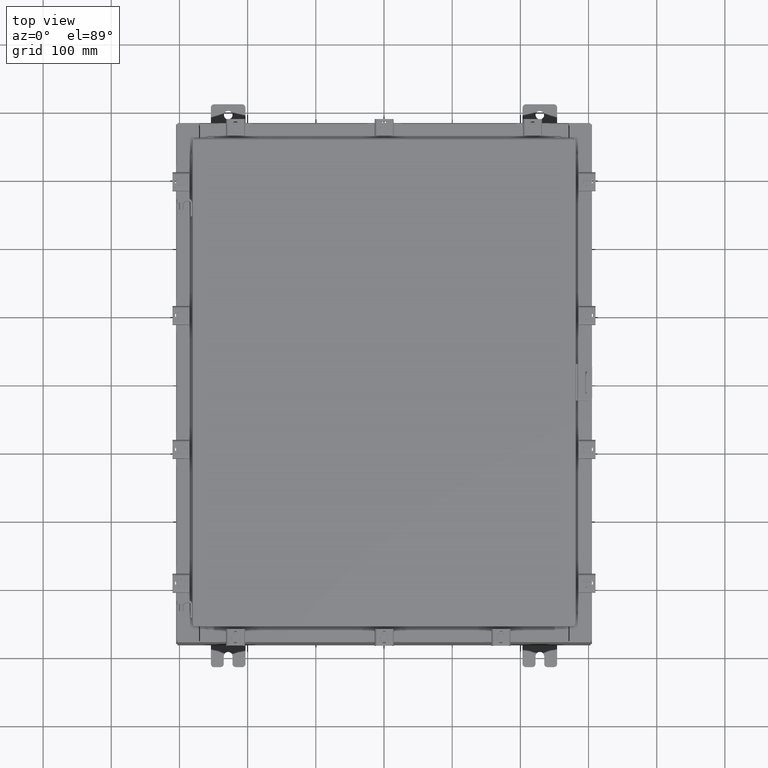
[diagram: clean part render]
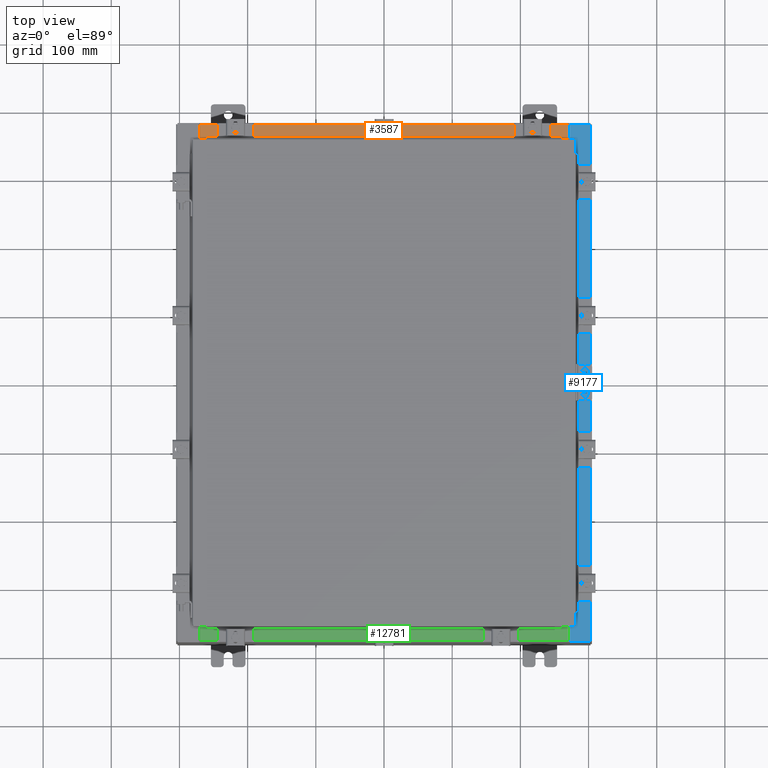
[diagram: same view with three faces highlighted in distinct colors, each labeled with its STEP entity id]
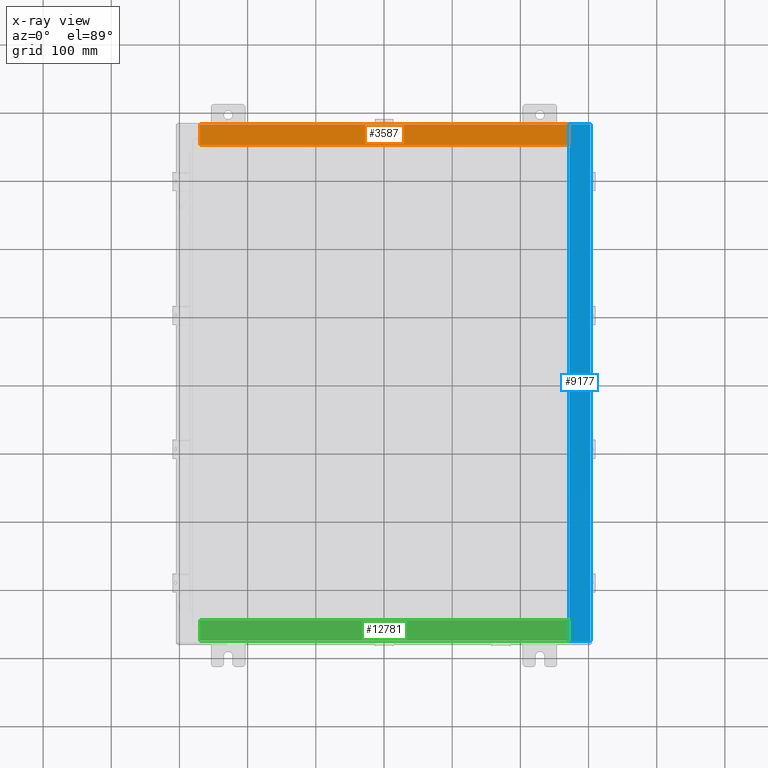
[diagram: x-ray of the same camera — body ghosted, the three highlighted faces saturated]
A machine part, top view with three faces highlighted in distinct colors.
The next image is the same camera in x-ray (body ghosted, the three faces saturated) — at least one of them is partly hidden behind the body in this view.
Their STEP definitions:

[orange] entity #3587 — the highlighted planar face has unit normal (0, 0, 1).
#71 = EDGE_CURVE ( 'NONE', #14273, #15420, #10271, .T. ) ;
#814 = ORIENTED_EDGE ( 'NONE', *, *, #11829, .F. ) ;
#822 = DIRECTION ( 'NONE',  ( 0.0000000000000000000, -1.000000000000000000, 3.566381192773190000E-015 ) ) ;
#1372 = CARTESIAN_POINT ( 'NONE',  ( -10.63720000000000200, -1.287299999999999200, 5.000000000000004400 ) ) ;
#2561 = ORIENTED_EDGE ( 'NONE', *, *, #6463, .F. ) ;
#3587 = ADVANCED_FACE ( 'NONE', ( #9654 ), #22399, .T. ) ;
#4755 = LINE ( 'NONE', #10333, #18420 ) ;
#5330 = ORIENTED_EDGE ( 'NONE', *, *, #20235, .F. ) ;
#6463 = EDGE_CURVE ( 'NONE', #18798, #15420, #11814, .T. ) ;
#8143 = VECTOR ( 'NONE', #19187, 39.37007874015748100 ) ;
#8326 = CARTESIAN_POINT ( 'NONE',  ( 0.0000000000000000000, 1.782631094477737600E-014, 5.000000000000000000 ) ) ;
#8558 = DIRECTION ( 'NONE',  ( -0.0000000000000000000, -1.000000000000000000, 3.566381192773190000E-015 ) ) ;
#8642 = CARTESIAN_POINT ( 'NONE',  ( -10.63720000000000200, -0.07469999999999973900, 5.000000000000000000 ) ) ;
#9253 = LINE ( 'NONE', #17388, #8143 ) ;
#9561 = CARTESIAN_POINT ( 'NONE',  ( 4.504626575497439200E-018, -0.08770000000000081900, 5.000000000000000000 ) ) ;
#9654 = FACE_OUTER_BOUND ( 'NONE', #19367, .T. ) ;
#9696 = VECTOR ( 'NONE', #9874, 39.37007874015748100 ) ;
#9874 = DIRECTION ( 'NONE',  ( -1.000000000000000000, -5.136404305013091600E-017, 1.831837571187793700E-031 ) ) ;
#10271 = LINE ( 'NONE', #9561, #9696 ) ;
#10333 = CARTESIAN_POINT ( 'NONE',  ( 10.63720000000000200, -1.300299999999999800, 5.000000000000004400 ) ) ;
#11674 = AXIS2_PLACEMENT_3D ( 'NONE', #8326, #14019, #822 ) ;
#11814 = LINE ( 'NONE', #8642, #16580 ) ;
#11829 = EDGE_CURVE ( 'NONE', #14273, #17532, #4755, .T. ) ;
#12236 = DIRECTION ( 'NONE',  ( -0.0000000000000000000, 1.000000000000000000, -3.566381192773190000E-015 ) ) ;
#12707 = ORIENTED_EDGE ( 'NONE', *, *, #71, .T. ) ;
#14019 = DIRECTION ( 'NONE',  ( 0.0000000000000000000, 3.566381192773190000E-015, 1.000000000000000000 ) ) ;
#14273 = VERTEX_POINT ( 'NONE', #20432 ) ;
#15420 = VERTEX_POINT ( 'NONE', #18469 ) ;
#15611 = CARTESIAN_POINT ( 'NONE',  ( 10.63720000000000200, -1.287299999999999900, 5.000000000000004400 ) ) ;
#16580 = VECTOR ( 'NONE', #12236, 39.37007874015748100 ) ;
#17388 = CARTESIAN_POINT ( 'NONE',  ( 10.63720000000000400, -1.287299999999999900, 5.000000000000003600 ) ) ;
#17532 = VERTEX_POINT ( 'NONE', #15611 ) ;
#18420 = VECTOR ( 'NONE', #8558, 39.37007874015748100 ) ;
#18469 = CARTESIAN_POINT ( 'NONE',  ( -10.63720000000000200, -0.08770000000000081900, 5.000000000000000000 ) ) ;
#18798 = VERTEX_POINT ( 'NONE', #1372 ) ;
#19187 = DIRECTION ( 'NONE',  ( -1.000000000000000000, 0.0000000000000000000, 0.0000000000000000000 ) ) ;
#19367 = EDGE_LOOP ( 'NONE', ( #2561, #5330, #814, #12707 ) ) ;
#20235 = EDGE_CURVE ( 'NONE', #17532, #18798, #9253, .T. ) ;
#20432 = CARTESIAN_POINT ( 'NONE',  ( 10.63720000000000400, -0.08770000000000047200, 5.000000000000000000 ) ) ;
#22399 = PLANE ( 'NONE',  #11674 ) ;

[blue] entity #9177 — the highlighted planar face has unit normal (-0, 0, -1).
#142 = CARTESIAN_POINT ( 'NONE',  ( 11.91230000000003200, 14.92529999999999800, 9.925300000000001800 ) ) ;
#749 = EDGE_CURVE ( 'NONE', #14797, #10319, #14514, .T. ) ;
#826 = ORIENTED_EDGE ( 'NONE', *, *, #19178, .F. ) ;
#838 = DIRECTION ( 'NONE',  ( -0.0000000000000000000, 1.000000000000000000, -0.0000000000000000000 ) ) ;
#896 = LINE ( 'NONE', #16833, #14105 ) ;
#1371 = DIRECTION ( 'NONE',  ( -1.000000000000000000, 0.0000000000000000000, 5.349571789159788500E-015 ) ) ;
#1559 = CARTESIAN_POINT ( 'NONE',  ( 10.75005000000003400, -13.59375000000000000, 9.925300000000008900 ) ) ;
#2268 = DIRECTION ( 'NONE',  ( 1.000000000000000000, 0.0000000000000000000, 0.0000000000000000000 ) ) ;
#2574 = VERTEX_POINT ( 'NONE', #9966 ) ;
#2601 = VECTOR ( 'NONE', #17787, 39.37007874015748100 ) ;
#3727 = CIRCLE ( 'NONE', #10344, 0.01867499999999949400 ) ;
#3755 = FACE_OUTER_BOUND ( 'NONE', #8157, .T. ) ;
#4048 = VECTOR ( 'NONE', #16266, 39.37007874015748100 ) ;
#4287 = VECTOR ( 'NONE', #4965, 39.37007874015748100 ) ;
#4321 = EDGE_CURVE ( 'NONE', #2574, #6941, #896, .T. ) ;
#4436 = CARTESIAN_POINT ( 'NONE',  ( 10.75005000000003400, -13.59375000000000000, 9.925300000000008900 ) ) ;
#4620 = ORIENTED_EDGE ( 'NONE', *, *, #14408, .T. ) ;
#4626 = EDGE_CURVE ( 'NONE', #18583, #14797, #13230, .T. ) ;
#4905 = CARTESIAN_POINT ( 'NONE',  ( 10.69970000000003200, -5.494975343389772900E-030, 9.925300000000008900 ) ) ;
#4965 = DIRECTION ( 'NONE',  ( -0.0000000000000000000, -1.000000000000000000, -0.0000000000000000000 ) ) ;
#5249 = DIRECTION ( 'NONE',  ( -1.000000000000000000, 0.0000000000000000000, 0.0000000000000000000 ) ) ;
#5335 = ORIENTED_EDGE ( 'NONE', *, *, #749, .F. ) ;
#5404 = VERTEX_POINT ( 'NONE', #142 ) ;
#5481 = ORIENTED_EDGE ( 'NONE', *, *, #4626, .F. ) ;
#5527 = CARTESIAN_POINT ( 'NONE',  ( 10.75005000000003400, 13.63109999999999800, 9.925300000000008900 ) ) ;
#6345 = VECTOR ( 'NONE', #19152, 39.37007874015748100 ) ;
#6414 = CARTESIAN_POINT ( 'NONE',  ( 10.69970000000003200, -5.494975343389772900E-030, 9.925300000000008900 ) ) ;
#6467 = DIRECTION ( 'NONE',  ( 5.349571789159788500E-015, 0.0000000000000000000, 1.000000000000000000 ) ) ;
#6941 = VERTEX_POINT ( 'NONE', #18909 ) ;
#7087 = CARTESIAN_POINT ( 'NONE',  ( 5.335691853495958500E-014, 14.92529999999999800, 9.925300000000065700 ) ) ;
#7329 = VERTEX_POINT ( 'NONE', #21166 ) ;
#7334 = ORIENTED_EDGE ( 'NONE', *, *, #4321, .T. ) ;
#7373 = LINE ( 'NONE', #7087, #2601 ) ;
#7375 = ORIENTED_EDGE ( 'NONE', *, *, #16880, .T. ) ;
#7860 = DIRECTION ( 'NONE',  ( 5.349571789159788500E-015, 0.0000000000000000000, 1.000000000000000000 ) ) ;
#7954 = ORIENTED_EDGE ( 'NONE', *, *, #9744, .F. ) ;
#8157 = EDGE_LOOP ( 'NONE', ( #19719, #4620, #7334, #7954, #16577, #7375, #826, #8965, #11067, #5335, #5481, #12458 ) ) ;
#8293 = CARTESIAN_POINT ( 'NONE',  ( 10.69970000000003200, 14.92529999999999800, 9.925300000000008900 ) ) ;
#8465 = CARTESIAN_POINT ( 'NONE',  ( 5.335691853495958500E-014, 0.0000000000000000000, 9.925300000000065700 ) ) ;
#8686 = EDGE_CURVE ( 'NONE', #5404, #12337, #7373, .T. ) ;
#8965 = ORIENTED_EDGE ( 'NONE', *, *, #18038, .F. ) ;
#9177 = ADVANCED_FACE ( 'NONE', ( #3755 ), #22765, .F. ) ;
#9301 = LINE ( 'NONE', #5527, #4048 ) ;
#9744 = EDGE_CURVE ( 'NONE', #5404, #6941, #22640, .T. ) ;
#9751 = VECTOR ( 'NONE', #838, 39.37007874015748100 ) ;
#9854 = VECTOR ( 'NONE', #18054, 39.37007874015748100 ) ;
#9966 = CARTESIAN_POINT ( 'NONE',  ( 10.69970000000003200, -14.92529999999999800, 9.925300000000008900 ) ) ;
#10319 = VERTEX_POINT ( 'NONE', #16727 ) ;
#10344 = AXIS2_PLACEMENT_3D ( 'NONE', #18577, #7860, #20329 ) ;
#11067 = ORIENTED_EDGE ( 'NONE', *, *, #11604, .F. ) ;
#11604 = EDGE_CURVE ( 'NONE', #10319, #17212, #14513, .T. ) ;
#12140 = DIRECTION ( 'NONE',  ( -5.349571789159788500E-015, 0.0000000000000000000, -1.000000000000000000 ) ) ;
#12189 = LINE ( 'NONE', #6414, #20529 ) ;
#12319 = CARTESIAN_POINT ( 'NONE',  ( 10.69970000000003200, -13.63109999999999800, 9.925300000000008900 ) ) ;
#12337 = VERTEX_POINT ( 'NONE', #8293 ) ;
#12458 = ORIENTED_EDGE ( 'NONE', *, *, #19955, .F. ) ;
#12738 = CARTESIAN_POINT ( 'NONE',  ( 10.69970000000003200, -13.63109999999999800, 9.925300000000008900 ) ) ;
#13230 = LINE ( 'NONE', #1559, #22140 ) ;
#13275 = VERTEX_POINT ( 'NONE', #23031 ) ;
#14105 = VECTOR ( 'NONE', #20393, 39.37007874015748100 ) ;
#14408 = EDGE_CURVE ( 'NONE', #15144, #2574, #12189, .T. ) ;
#14513 = LINE ( 'NONE', #14799, #17599 ) ;
#14514 = LINE ( 'NONE', #21422, #9751 ) ;
#14629 = LINE ( 'NONE', #12738, #9854 ) ;
#14672 = CARTESIAN_POINT ( 'NONE',  ( 10.71270000000003500, -13.59375000000000000, 9.925300000000008900 ) ) ;
#14678 = CIRCLE ( 'NONE', #18954, 0.01867499999999949400 ) ;
#14797 = VERTEX_POINT ( 'NONE', #14672 ) ;
#14799 = CARTESIAN_POINT ( 'NONE',  ( 10.71270000000003500, 13.59375000000000000, 9.925300000000008900 ) ) ;
#15144 = VERTEX_POINT ( 'NONE', #12319 ) ;
#15614 = CARTESIAN_POINT ( 'NONE',  ( 11.91230000000003200, -14.92529999999999800, 9.925300000000001800 ) ) ;
#15856 = LINE ( 'NONE', #4905, #6345 ) ;
#16266 = DIRECTION ( 'NONE',  ( -1.000000000000000000, 0.0000000000000000000, 0.0000000000000000000 ) ) ;
#16577 = ORIENTED_EDGE ( 'NONE', *, *, #8686, .T. ) ;
#16718 = AXIS2_PLACEMENT_3D ( 'NONE', #8465, #12140, #1371 ) ;
#16727 = CARTESIAN_POINT ( 'NONE',  ( 10.71270000000003500, 13.59375000000000000, 9.925300000000008900 ) ) ;
#16833 = CARTESIAN_POINT ( 'NONE',  ( 5.335691853495958500E-014, -14.92529999999999800, 9.925300000000065700 ) ) ;
#16880 = EDGE_CURVE ( 'NONE', #12337, #7329, #15856, .T. ) ;
#17163 = CARTESIAN_POINT ( 'NONE',  ( 10.75005000000003400, 13.61242500000000000, 9.925300000000008900 ) ) ;
#17212 = VERTEX_POINT ( 'NONE', #20121 ) ;
#17599 = VECTOR ( 'NONE', #2268, 39.37007874015748100 ) ;
#17787 = DIRECTION ( 'NONE',  ( -1.000000000000000000, 4.861730685829018000E-063, 5.349571789159789300E-015 ) ) ;
#18038 = EDGE_CURVE ( 'NONE', #17212, #13275, #14678, .T. ) ;
#18054 = DIRECTION ( 'NONE',  ( 1.000000000000000000, 0.0000000000000000000, 0.0000000000000000000 ) ) ;
#18577 = CARTESIAN_POINT ( 'NONE',  ( 10.75005000000003400, -13.61242500000000000, 9.925300000000008900 ) ) ;
#18583 = VERTEX_POINT ( 'NONE', #4436 ) ;
#18888 = DIRECTION ( 'NONE',  ( -5.135634964896009300E-031, -1.000000000000000000, 2.747344792763031300E-045 ) ) ;
#18909 = CARTESIAN_POINT ( 'NONE',  ( 11.91230000000003200, -14.92529999999999800, 9.925300000000001800 ) ) ;
#18944 = DIRECTION ( 'NONE',  ( 1.000000000000000000, 0.0000000000000000000, 0.0000000000000000000 ) ) ;
#18954 = AXIS2_PLACEMENT_3D ( 'NONE', #17163, #6467, #18944 ) ;
#19095 = EDGE_CURVE ( 'NONE', #15144, #21503, #14629, .T. ) ;
#19152 = DIRECTION ( 'NONE',  ( -5.135634964896009300E-031, -1.000000000000000000, 2.747344792763031300E-045 ) ) ;
#19178 = EDGE_CURVE ( 'NONE', #13275, #7329, #9301, .T. ) ;
#19719 = ORIENTED_EDGE ( 'NONE', *, *, #19095, .F. ) ;
#19955 = EDGE_CURVE ( 'NONE', #21503, #18583, #3727, .T. ) ;
#20121 = CARTESIAN_POINT ( 'NONE',  ( 10.75005000000003400, 13.59375000000000000, 9.925300000000008900 ) ) ;
#20329 = DIRECTION ( 'NONE',  ( 1.000000000000000000, 0.0000000000000000000, 0.0000000000000000000 ) ) ;
#20393 = DIRECTION ( 'NONE',  ( 1.000000000000000000, 1.305543112181250400E-031, -5.349571789159789300E-015 ) ) ;
#20529 = VECTOR ( 'NONE', #18888, 39.37007874015748100 ) ;
#20913 = CARTESIAN_POINT ( 'NONE',  ( 10.75005000000003400, -13.63109999999999800, 9.925300000000008900 ) ) ;
#21166 = CARTESIAN_POINT ( 'NONE',  ( 10.69970000000003200, 13.63109999999999800, 9.925300000000008900 ) ) ;
#21422 = CARTESIAN_POINT ( 'NONE',  ( 10.71270000000003500, -13.59375000000000000, 9.925300000000008900 ) ) ;
#21503 = VERTEX_POINT ( 'NONE', #20913 ) ;
#22140 = VECTOR ( 'NONE', #5249, 39.37007874015748100 ) ;
#22640 = LINE ( 'NONE', #15614, #4287 ) ;
#22765 = PLANE ( 'NONE',  #16718 ) ;
#23031 = CARTESIAN_POINT ( 'NONE',  ( 10.75005000000003400, 13.63109999999999800, 9.925300000000008900 ) ) ;

[green] entity #12781 — the highlighted planar face has unit normal (-0, -0, 1).
#15 = EDGE_CURVE ( 'NONE', #1477, #21883, #11392, .T. ) ;
#1477 = VERTEX_POINT ( 'NONE', #15746 ) ;
#1804 = LINE ( 'NONE', #2244, #19723 ) ;
#2147 = FACE_OUTER_BOUND ( 'NONE', #12748, .T. ) ;
#2231 = VECTOR ( 'NONE', #19969, 39.37007874015748100 ) ;
#2244 = CARTESIAN_POINT ( 'NONE',  ( -10.63720000000000200, -0.07469999999999973900, 5.000000000000000000 ) ) ;
#2304 = VERTEX_POINT ( 'NONE', #14080 ) ;
#2336 = ORIENTED_EDGE ( 'NONE', *, *, #16707, .F. ) ;
#2932 = CARTESIAN_POINT ( 'NONE',  ( 10.63720000000000400, -0.08770000000000047200, 5.000000000000000000 ) ) ;
#4100 = VERTEX_POINT ( 'NONE', #2932 ) ;
#4990 = VECTOR ( 'NONE', #16890, 39.37007874015748100 ) ;
#6203 = CARTESIAN_POINT ( 'NONE',  ( 10.63720000000000200, -1.300299999999999800, 5.000000000000004400 ) ) ;
#7567 = PLANE ( 'NONE',  #12173 ) ;
#9367 = DIRECTION ( 'NONE',  ( -0.0000000000000000000, 1.000000000000000000, -3.566381192773190000E-015 ) ) ;
#9427 = DIRECTION ( 'NONE',  ( 0.0000000000000000000, -1.000000000000000000, 3.566381192773190000E-015 ) ) ;
#9565 = ORIENTED_EDGE ( 'NONE', *, *, #15, .F. ) ;
#10449 = ORIENTED_EDGE ( 'NONE', *, *, #21809, .T. ) ;
#10818 = VECTOR ( 'NONE', #12556, 39.37007874015748100 ) ;
#11237 = CARTESIAN_POINT ( 'NONE',  ( -10.63720000000000200, -1.287299999999999200, 5.000000000000004400 ) ) ;
#11392 = LINE ( 'NONE', #13822, #10818 ) ;
#11753 = LINE ( 'NONE', #14686, #2231 ) ;
#12173 = AXIS2_PLACEMENT_3D ( 'NONE', #16548, #20106, #9427 ) ;
#12556 = DIRECTION ( 'NONE',  ( -1.000000000000000000, 0.0000000000000000000, 0.0000000000000000000 ) ) ;
#12748 = EDGE_LOOP ( 'NONE', ( #23064, #9565, #2336, #10449 ) ) ;
#12781 = ADVANCED_FACE ( 'NONE', ( #2147 ), #7567, .T. ) ;
#13822 = CARTESIAN_POINT ( 'NONE',  ( 10.63720000000000400, -1.287299999999999900, 5.000000000000003600 ) ) ;
#14080 = CARTESIAN_POINT ( 'NONE',  ( -10.63720000000000200, -0.08770000000000081900, 5.000000000000000000 ) ) ;
#14166 = EDGE_CURVE ( 'NONE', #21883, #2304, #1804, .T. ) ;
#14686 = CARTESIAN_POINT ( 'NONE',  ( 4.504626575497439200E-018, -0.08770000000000081900, 5.000000000000000000 ) ) ;
#15746 = CARTESIAN_POINT ( 'NONE',  ( 10.63720000000000200, -1.287299999999999900, 5.000000000000004400 ) ) ;
#16548 = CARTESIAN_POINT ( 'NONE',  ( 0.0000000000000000000, 1.782631094477737600E-014, 5.000000000000000000 ) ) ;
#16707 = EDGE_CURVE ( 'NONE', #4100, #1477, #18636, .T. ) ;
#16890 = DIRECTION ( 'NONE',  ( -0.0000000000000000000, -1.000000000000000000, 3.566381192773190000E-015 ) ) ;
#18636 = LINE ( 'NONE', #6203, #4990 ) ;
#19723 = VECTOR ( 'NONE', #9367, 39.37007874015748100 ) ;
#19969 = DIRECTION ( 'NONE',  ( -1.000000000000000000, -5.136404305013091600E-017, 1.831837571187793700E-031 ) ) ;
#20106 = DIRECTION ( 'NONE',  ( 0.0000000000000000000, 3.566381192773190000E-015, 1.000000000000000000 ) ) ;
#21809 = EDGE_CURVE ( 'NONE', #4100, #2304, #11753, .T. ) ;
#21883 = VERTEX_POINT ( 'NONE', #11237 ) ;
#23064 = ORIENTED_EDGE ( 'NONE', *, *, #14166, .F. ) ;